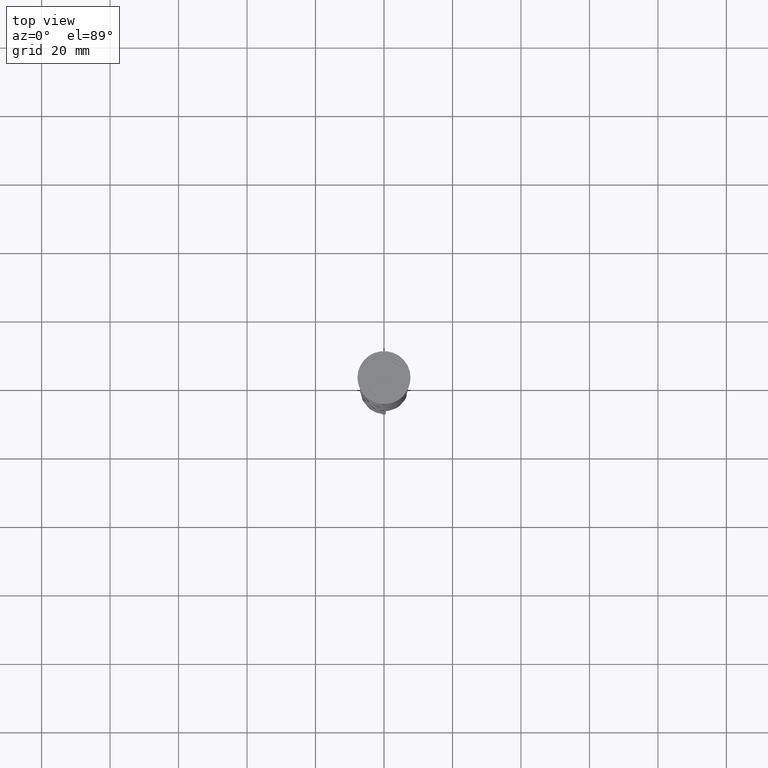
[diagram: clean part render]
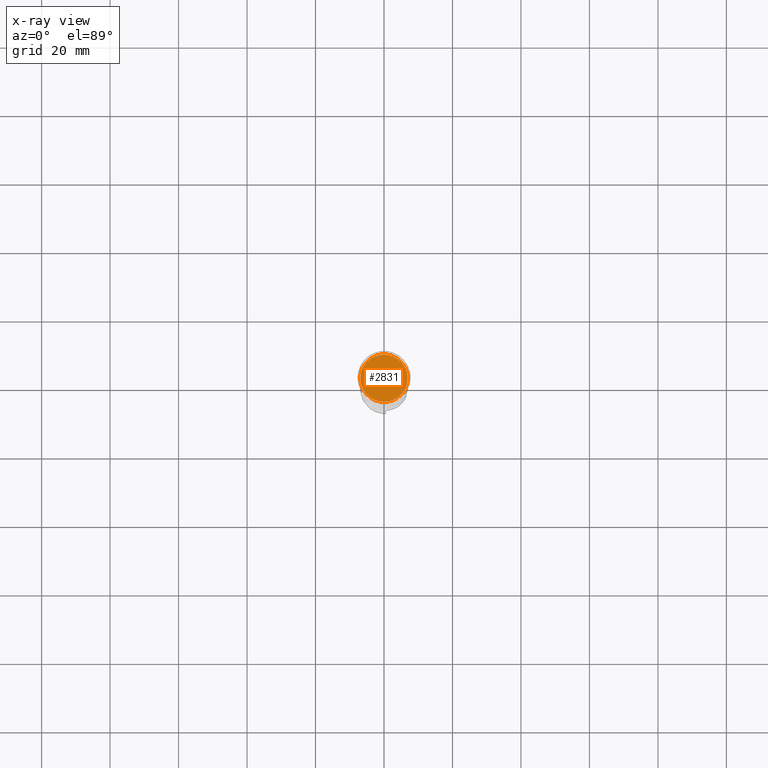
[diagram: x-ray — body ghosted, one internal face saturated and labeled with its STEP entity id]
A machine part, top view, then the same camera in x-ray: the body is ghosted and one INTERNAL B-rep face — a face not visible from any outside direction — is saturated and labeled: STEP entity #2831.
In plain terms, the highlighted planar face has unit normal (0, 0, -1).
Its self-contained STEP definition (entity closure, byte-faithful):
#4 = AXIS2_PLACEMENT_3D ( 'NONE', #1265, #439, #2155 ) ;
#9 = VERTEX_POINT ( 'NONE', #144 ) ;
#115 = PLANE ( 'NONE',  #4 ) ;
#144 = CARTESIAN_POINT ( 'NONE',  ( -6.950000000000001066, 0.000000000000000000, -10.50000000000000178 ) ) ;
#439 = DIRECTION ( 'NONE',  ( 0.000000000000000000, 0.000000000000000000, -1.000000000000000000 ) ) ;
#969 = VERTEX_POINT ( 'NONE', #2051 ) ;
#1121 = EDGE_CURVE ( 'NONE', #9, #969, #2401, .T. ) ;
#1174 = AXIS2_PLACEMENT_3D ( 'NONE', #1807, #3521, #3553 ) ;
#1265 = CARTESIAN_POINT ( 'NONE',  ( 0.000000000000000000, 0.000000000000000000, -10.50000000000000178 ) ) ;
#1432 = ORIENTED_EDGE ( 'NONE', *, *, #1121, .T. ) ;
#1807 = CARTESIAN_POINT ( 'NONE',  ( 0.000000000000000000, 0.000000000000000000, -10.50000000000000178 ) ) ;
#1905 = ORIENTED_EDGE ( 'NONE', *, *, #3373, .T. ) ;
#1914 = CIRCLE ( 'NONE', #1174, 6.950000000000001066 ) ;
#2051 = CARTESIAN_POINT ( 'NONE',  ( 6.950000000000001066, 8.694992273946209718E-16, -10.50000000000000178 ) ) ;
#2155 = DIRECTION ( 'NONE',  ( -1.000000000000000000, 0.000000000000000000, -0.000000000000000000 ) ) ;
#2401 = CIRCLE ( 'NONE', #3255, 6.950000000000001066 ) ;
#2471 = DIRECTION ( 'NONE',  ( -0.000000000000000000, -0.000000000000000000, 1.000000000000000000 ) ) ;
#2831 = ADVANCED_FACE ( 'NONE', ( #3636 ), #115, .F. ) ;
#3037 = DIRECTION ( 'NONE',  ( -1.000000000000000000, 0.000000000000000000, 0.000000000000000000 ) ) ;
#3255 = AXIS2_PLACEMENT_3D ( 'NONE', #3312, #2471, #3037 ) ;
#3312 = CARTESIAN_POINT ( 'NONE',  ( 0.000000000000000000, 0.000000000000000000, -10.50000000000000178 ) ) ;
#3373 = EDGE_CURVE ( 'NONE', #969, #9, #1914, .T. ) ;
#3521 = DIRECTION ( 'NONE',  ( -0.000000000000000000, -0.000000000000000000, 1.000000000000000000 ) ) ;
#3551 = EDGE_LOOP ( 'NONE', ( #1432, #1905 ) ) ;
#3553 = DIRECTION ( 'NONE',  ( -1.000000000000000000, 0.000000000000000000, 0.000000000000000000 ) ) ;
#3636 = FACE_OUTER_BOUND ( 'NONE', #3551, .T. ) ;